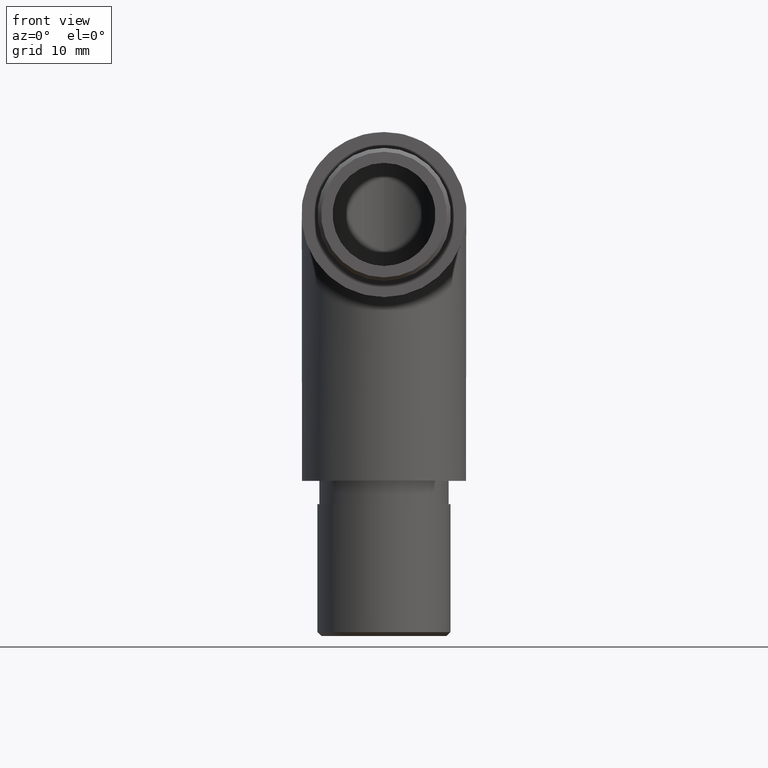
[diagram: clean part render]
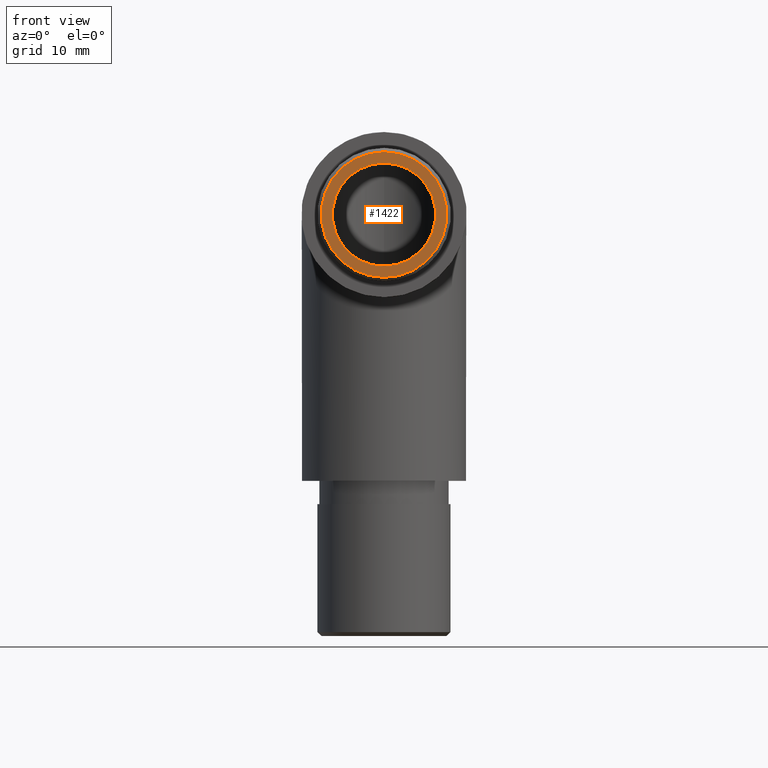
[diagram: same view with one face highlighted and labeled with its STEP entity id]
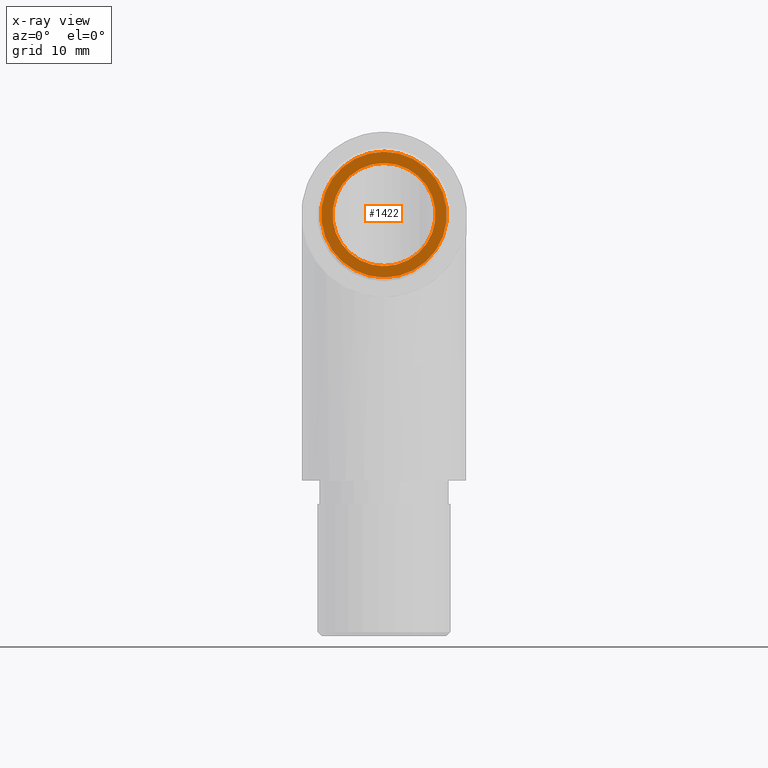
[diagram: x-ray of the same camera — body ghosted, the highlighted face saturated]
A machine part, front view. The second image highlights one B-rep face of the part: STEP entity #1422.
The next image is the same camera in x-ray: the body ghosted, the highlighted face saturated — about 0% of this face is hidden behind the body in this view.
In plain terms, the highlighted planar face has unit normal (0, -1, 0).
Its self-contained STEP definition (entity closure, byte-faithful):
#520 = VERTEX_POINT ( 'NONE', #9074 ) ;
#1422 = ADVANCED_FACE ( 'NONE', ( #3316, #8519 ), #9773, .T. ) ;
#1903 = EDGE_LOOP ( 'NONE', ( #2981 ) ) ;
#2981 = ORIENTED_EDGE ( 'NONE', *, *, #3677, .F. ) ;
#3201 = CARTESIAN_POINT ( 'NONE',  ( 0.0000000000000000000, -20.00000000000000000, 0.0000000000000000000 ) ) ;
#3316 = FACE_OUTER_BOUND ( 'NONE', #10714, .T. ) ;
#3677 = EDGE_CURVE ( 'NONE', #4133, #4133, #11634, .T. ) ;
#4133 = VERTEX_POINT ( 'NONE', #7118 ) ;
#4149 = EDGE_CURVE ( 'NONE', #520, #520, #6411, .T. ) ;
#4325 = CARTESIAN_POINT ( 'NONE',  ( 0.0000000000000000000, -20.00000000000000000, 0.0000000000000000000 ) ) ;
#4938 = AXIS2_PLACEMENT_3D ( 'NONE', #3201, #10592, #5069 ) ;
#5069 = DIRECTION ( 'NONE',  ( 0.0000000000000000000, -0.0000000000000000000, -1.000000000000000000 ) ) ;
#5879 = DIRECTION ( 'NONE',  ( 0.0000000000000000000, -1.000000000000000000, 0.0000000000000000000 ) ) ;
#6250 = DIRECTION ( 'NONE',  ( 0.0000000000000000000, 0.0000000000000000000, -1.000000000000000000 ) ) ;
#6411 = CIRCLE ( 'NONE', #11596, 8.099999999999981900 ) ;
#6845 = CARTESIAN_POINT ( 'NONE',  ( 0.0000000000000000000, -20.00000000000000000, 0.0000000000000000000 ) ) ;
#7118 = CARTESIAN_POINT ( 'NONE',  ( 0.0000000000000000000, -20.00000000000000000, -6.650000000000000400 ) ) ;
#8519 = FACE_BOUND ( 'NONE', #1903, .T. ) ;
#9074 = CARTESIAN_POINT ( 'NONE',  ( 0.0000000000000000000, -20.00000000000000000, -8.099999999999981900 ) ) ;
#9386 = ORIENTED_EDGE ( 'NONE', *, *, #4149, .T. ) ;
#9480 = DIRECTION ( 'NONE',  ( 0.0000000000000000000, 0.0000000000000000000, -1.000000000000000000 ) ) ;
#9773 = PLANE ( 'NONE',  #4938 ) ;
#9942 = DIRECTION ( 'NONE',  ( 0.0000000000000000000, -1.000000000000000000, 0.0000000000000000000 ) ) ;
#10592 = DIRECTION ( 'NONE',  ( 0.0000000000000000000, -1.000000000000000000, 0.0000000000000000000 ) ) ;
#10714 = EDGE_LOOP ( 'NONE', ( #9386 ) ) ;
#11596 = AXIS2_PLACEMENT_3D ( 'NONE', #6845, #5879, #9480 ) ;
#11634 = CIRCLE ( 'NONE', #11816, 6.650000000000000400 ) ;
#11816 = AXIS2_PLACEMENT_3D ( 'NONE', #4325, #9942, #6250 ) ;